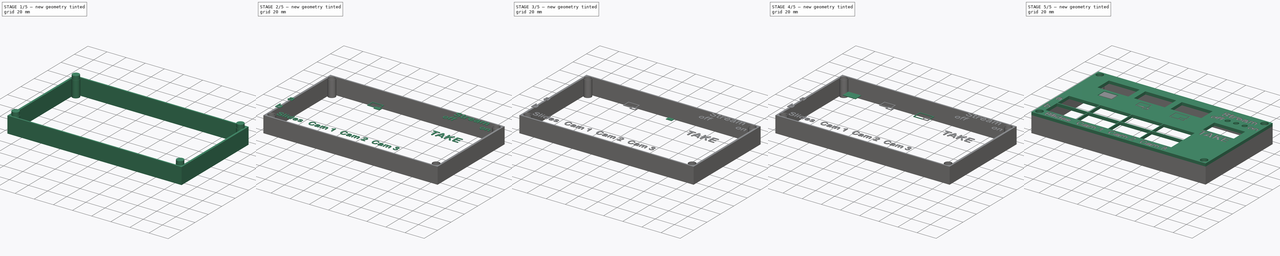
[diagram: build sequence overview — one tinted view per stage of 5, left to right]
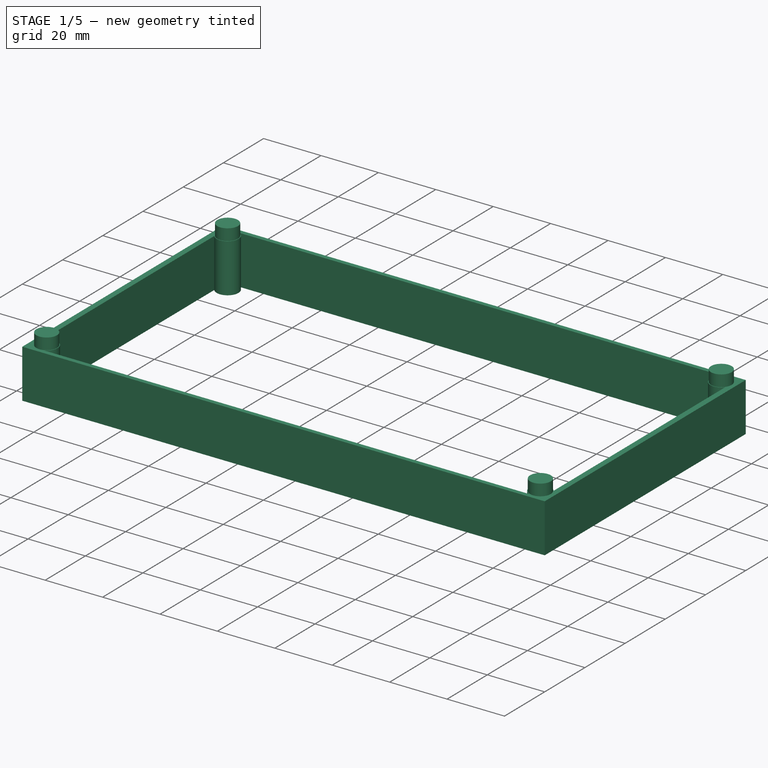
[diagram: stage 1 of 5 — iso view after this stage's code; geometry added in this stage tinted green]
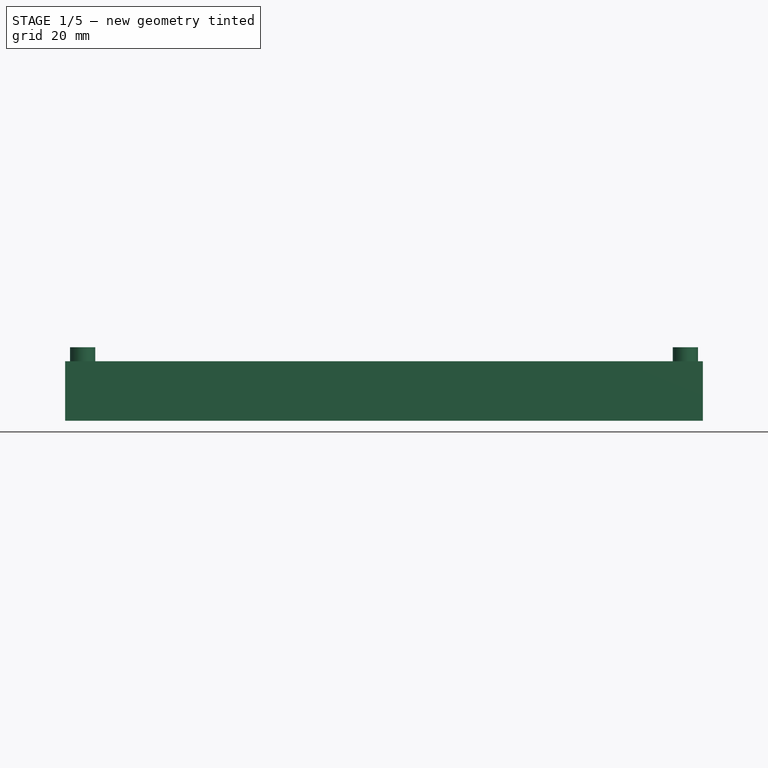
[diagram: stage 1 of 5 — front view after this stage's code; geometry added in this stage tinted green]
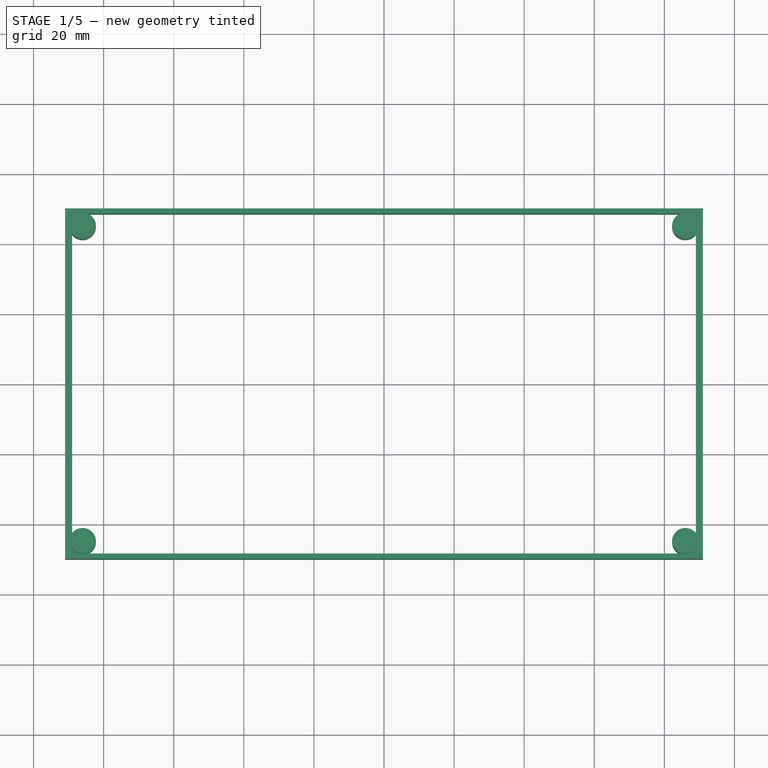
[diagram: stage 1 of 5 — top view after this stage's code; geometry added in this stage tinted green]
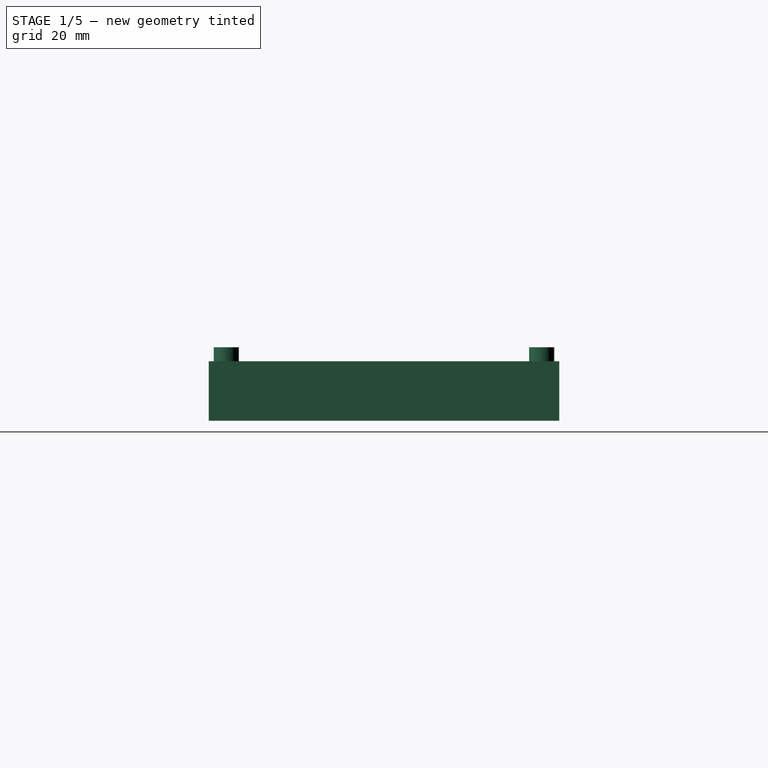
[diagram: stage 1 of 5 — right view after this stage's code; geometry added in this stage tinted green]
FCSTD DOCUMENT  (FreeCAD 0.16R6712 (Git))
Label: Vmix-C halbgeschnitten oben
License: CreativeCommons Attribution
LicenseURL: http://creativecommons.org/licenses/by/4.0/
objects: Part::Part2DObjectPython×10, Part::Box×10, Part::Cut×7, Part::MultiFuse×6, Part::Cylinder×4, Part::Extrusion×3, Sketcher::SketchObject×2
note: 42 computed .brp shape members not serialized (recipe doc carries the construction recipe); baked Part::Feature solids carry a one-line shape summary decoded from their .brp

FEATURE [Part::Extrusion] Extrude001  label="Extrude außen Deckel"
  Base = -> Sketch
  Dir = (0,0,-17)
  Solid = true
FEATURE [Part::Cylinder] Cylinder  label="Zylinder"
  Angle = 360
  Height = 18
  Placement = pos=(-86,-45,-14) rot=(0,0,1;0rad)
  Radius = 3.6
FEATURE [Part::Cylinder] Cylinder001  label="Zylinder001"
  Angle = 360
  Height = 18
  Placement = pos=(-86,45,-14) rot=(0,0,1;0rad)
  Radius = 3.6
FEATURE [Part::Cylinder] Cylinder002  label="Zylinder002"
  Angle = 360
  Height = 18
  Placement = pos=(86,45,-14) rot=(0,0,1;0rad)
  Radius = 3.6
FEATURE [Part::Cylinder] Cylinder003  label="Zylinder003"
  Angle = 360
  Height = 18
  Placement = pos=(86,-45,-14) rot=(0,0,1;0rad)
  Radius = 3.6
FEATURE [Part::MultiFuse] Fusion
  Shapes = -> [Cylinder,Cylinder003,Cylinder002,Cylinder001]
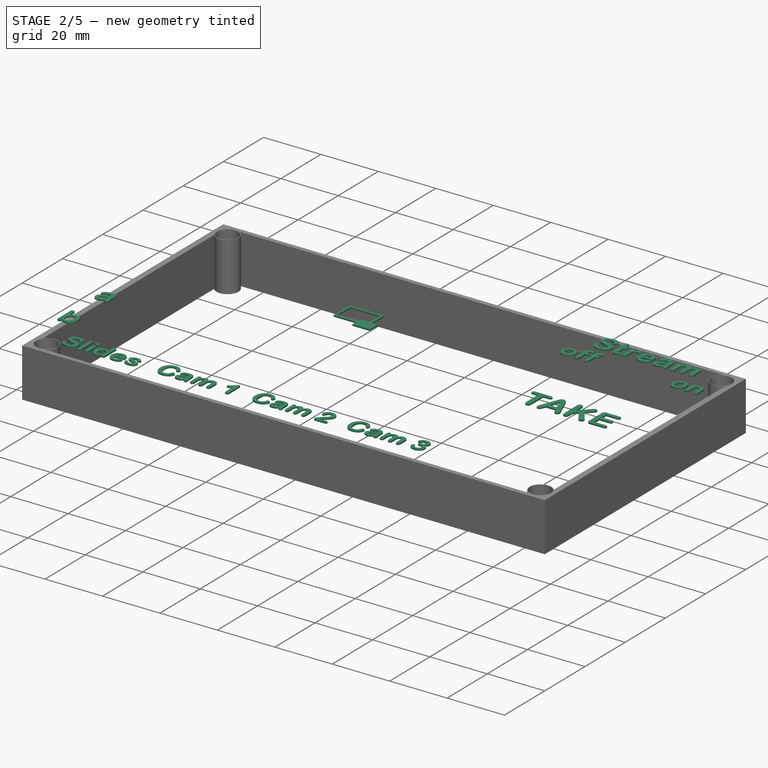
[diagram: stage 2 of 5 — iso view after this stage's code; geometry added in this stage tinted green]
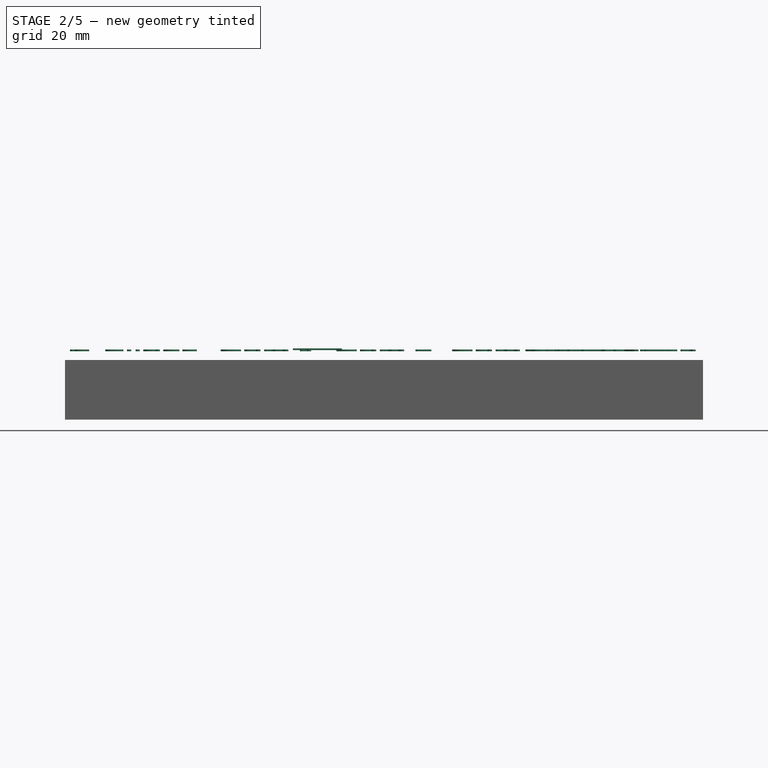
[diagram: stage 2 of 5 — front view after this stage's code; geometry added in this stage tinted green]
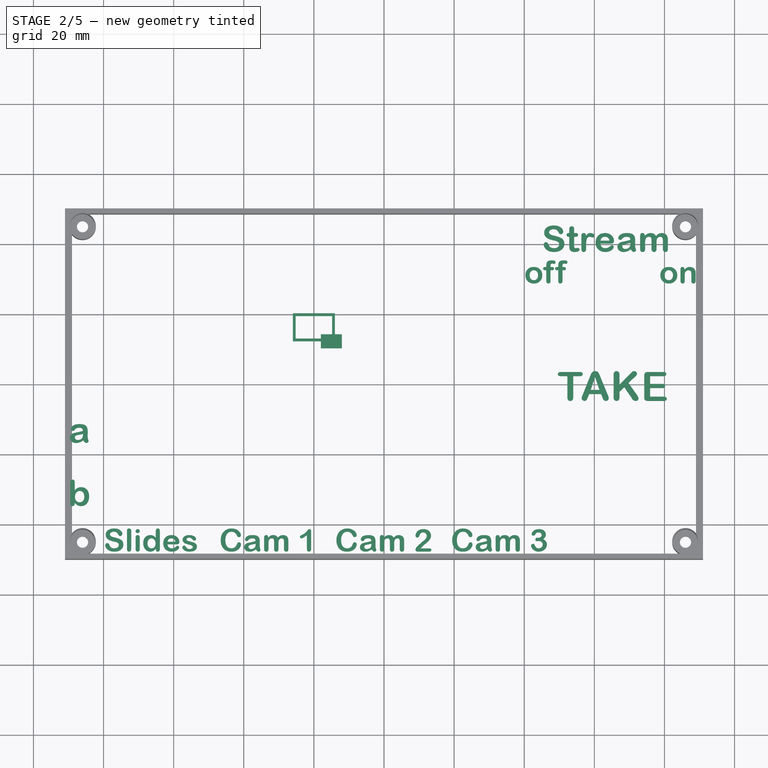
[diagram: stage 2 of 5 — top view after this stage's code; geometry added in this stage tinted green]
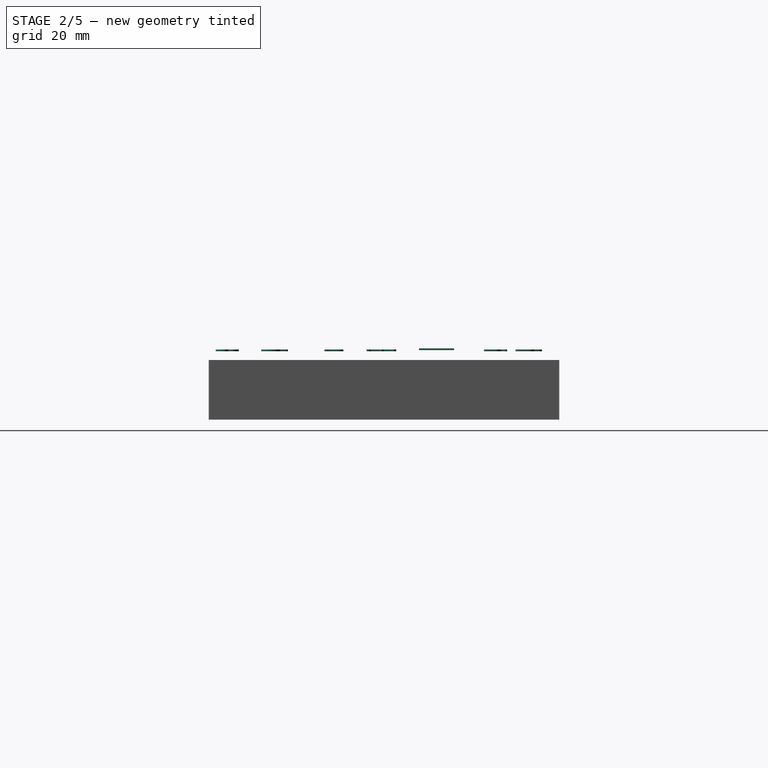
[diagram: stage 2 of 5 — right view after this stage's code; geometry added in this stage tinted green]
FEATURE [Part::Box] Box002  label="Würfel002"
  Height = 0.5
  Length = 12
  Placement = pos=(-26,12,2.8) rot=(0,0,1;0rad)
  Width = 8
FEATURE [Part::Box] Box006  label="Würfel006"
  Height = 0.5
  Length = 6
  Placement = pos=(-18,10,2.8) rot=(0,0,1;0rad)
  Width = 4
FEATURE [Part::Box] Box009  label="Würfel009"
  Height = 0.5
  Length = 10.4
  Placement = pos=(-25.2,12.8,2.8) rot=(0,0,1;0rad)
  Width = 6.4
FEATURE [Part::Cut] Cut004
  Base = -> Box002
  Tool = -> Box009
FEATURE [Part::Part2DObjectPython] ShapeString008  label="Stream"  # Draft 2D object (typed FeaturePython)
  FontFile = /Library/Fonts/Arial Rounded Bold.ttf
  Placement = pos=(45,37.5,3) rot=(0,0,1;0rad)
  Size = 8
  String = Stream
  Tracking = 0
FEATURE [Part::Part2DObjectPython] ShapeString009  label="on"  # Draft 2D object (typed FeaturePython)
  FontFile = /Library/Fonts/Arial Rounded Bold.ttf
  Placement = pos=(78.5,28.5,3) rot=(0,0,1;0rad)
  Size = 7
  String = on
  Tracking = 0
FEATURE [Part::Part2DObjectPython] ShapeString010  label="off"  # Draft 2D object (typed FeaturePython)
  FontFile = /Library/Fonts/Arial Rounded Bold.ttf
  Placement = pos=(40,28.5,3) rot=(0,0,1;0rad)
  Size = 7
  String = off
  Tracking = 0
FEATURE [Part::MultiFuse] Fusion005  label="FusionText"
  Shapes = -> [ShapeString010,ShapeString009,ShapeString008,ShapeString,ShapeString001,ShapeString002,ShapeString003,ShapeString004,ShapeString005,ShapeString006]
FEATURE [Part::Extrusion] Extrude002  label="ExtrudeText"
  Base = -> Fusion005
  Dir = (0,0,-0.5)
  Solid = true
FEATURE [Part::Cut] Cut006  label="Cut aussen"
  Base = -> Extrude001
  Tool = -> Fusion
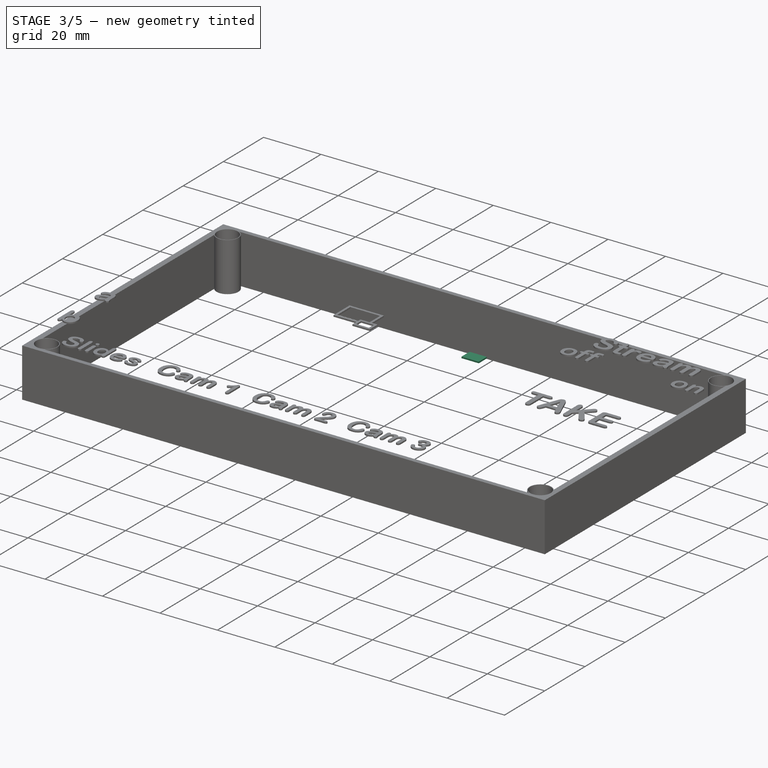
[diagram: stage 3 of 5 — iso view after this stage's code; geometry added in this stage tinted green]
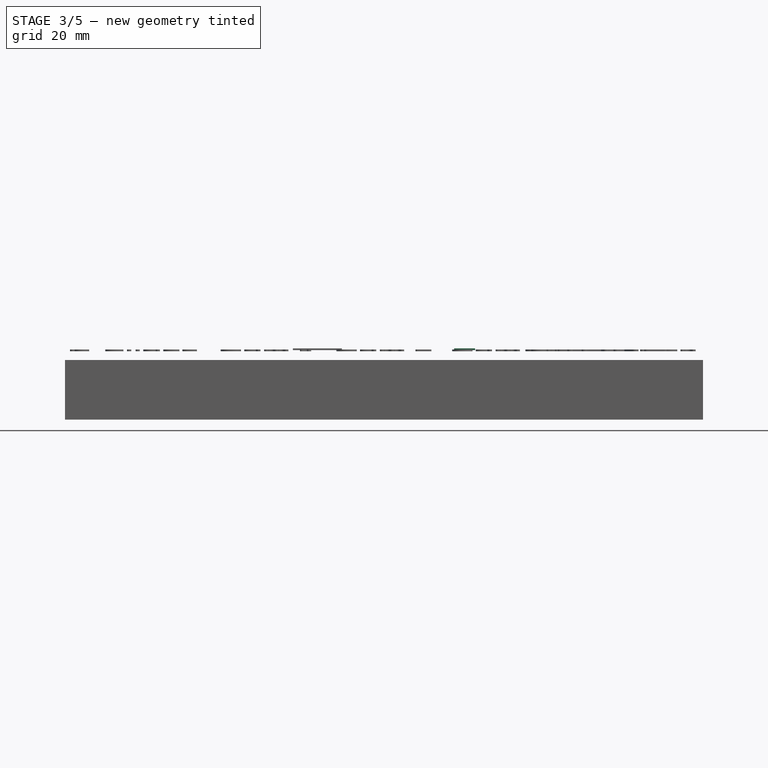
[diagram: stage 3 of 5 — front view after this stage's code; geometry added in this stage tinted green]
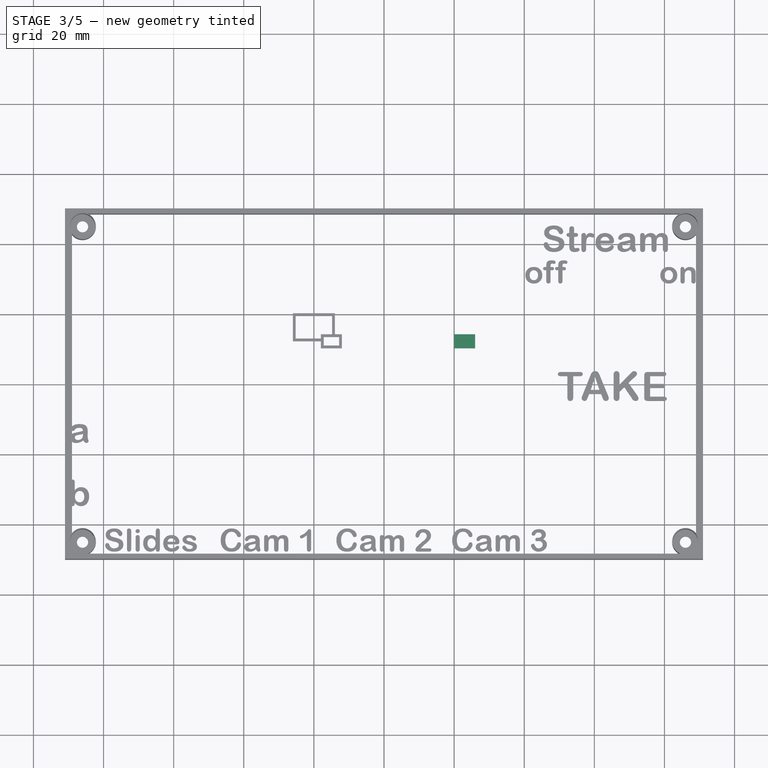
[diagram: stage 3 of 5 — top view after this stage's code; geometry added in this stage tinted green]
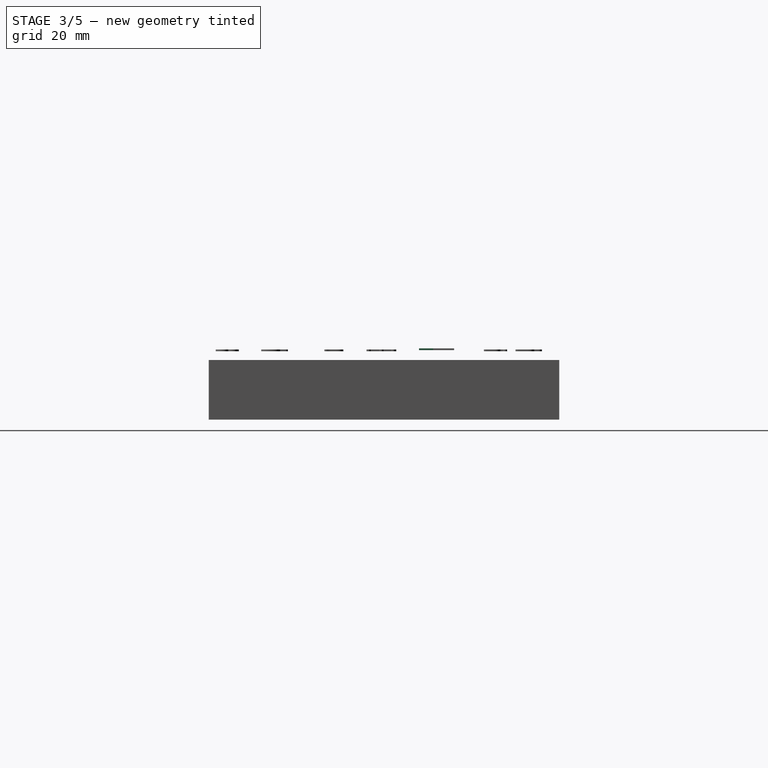
[diagram: stage 3 of 5 — right view after this stage's code; geometry added in this stage tinted green]
FEATURE [Part::Box] Box005  label="Würfel005"
  Height = 0.5
  Length = 6
  Placement = pos=(20,10,2.8) rot=(0,0,1;0rad)
  Width = 4
FEATURE [Part::Box] Box007  label="Würfel007"
  Height = 0.5
  Length = 4.4
  Placement = pos=(20.8,10.8,2.8) rot=(0,0,1;0rad)
  Width = 2.4
FEATURE [Part::Box] Box008  label="Würfel008"
  Height = 0.5
  Length = 4.4
  Placement = pos=(-17.2,10.8,2.8) rot=(0,0,1;0rad)
  Width = 2.4
FEATURE [Part::MultiFuse] Fusion003
  Shapes = -> [Cut004,Box006]
FEATURE [Part::Cut] Cut005  label="Cut superscource"
  Base = -> Fusion003
  Tool = -> Box008
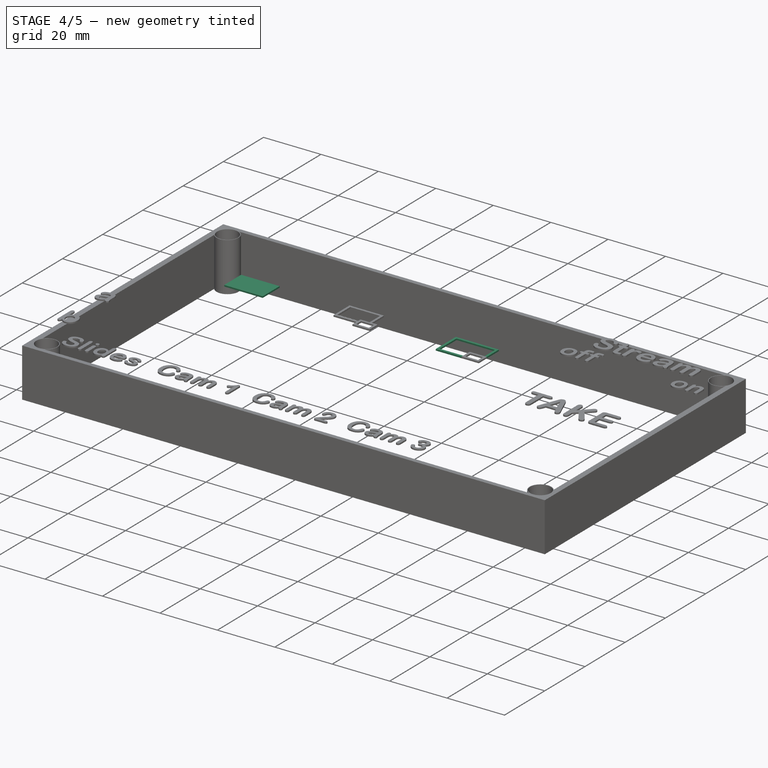
[diagram: stage 4 of 5 — iso view after this stage's code; geometry added in this stage tinted green]
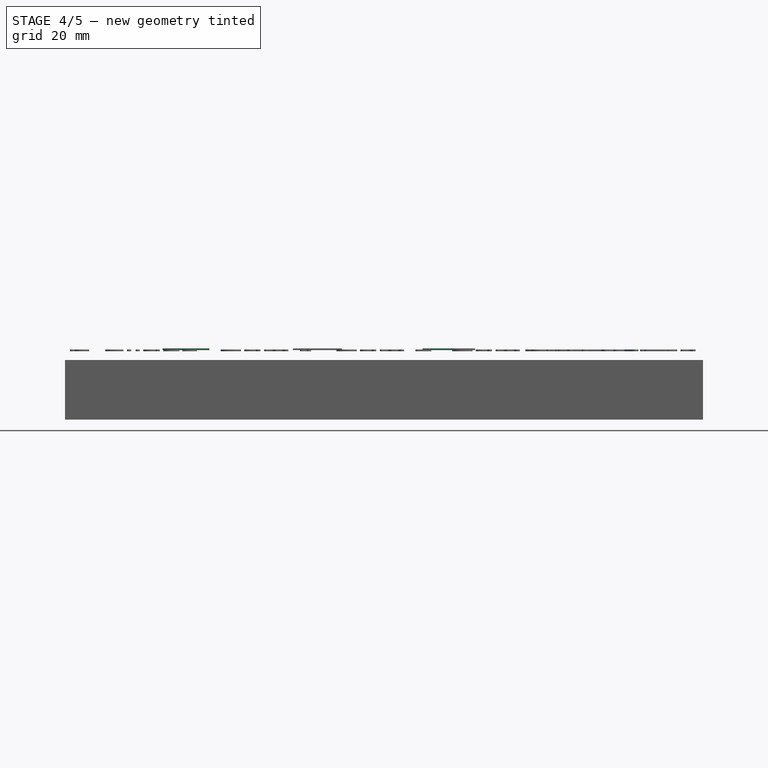
[diagram: stage 4 of 5 — front view after this stage's code; geometry added in this stage tinted green]
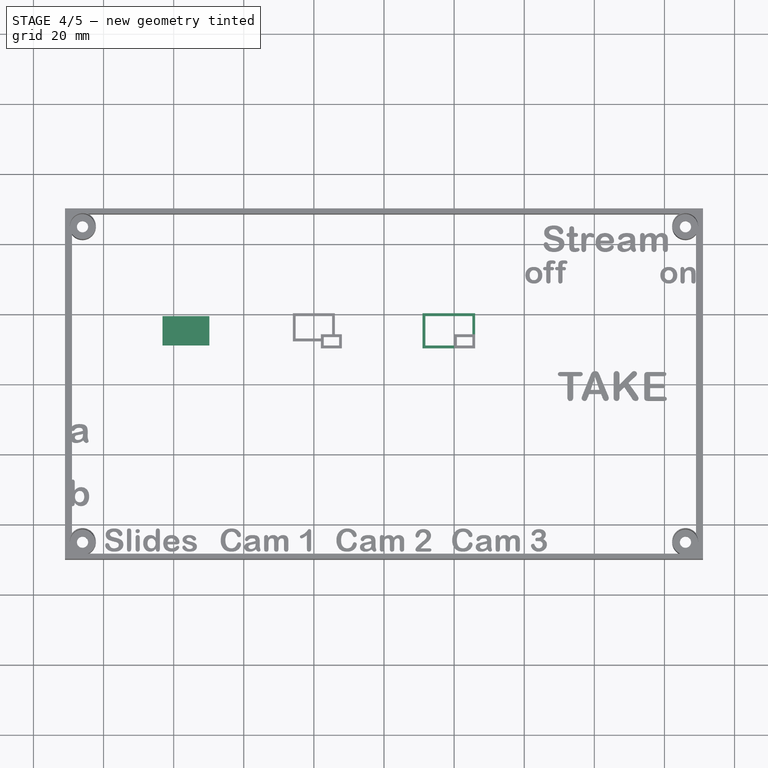
[diagram: stage 4 of 5 — top view after this stage's code; geometry added in this stage tinted green]
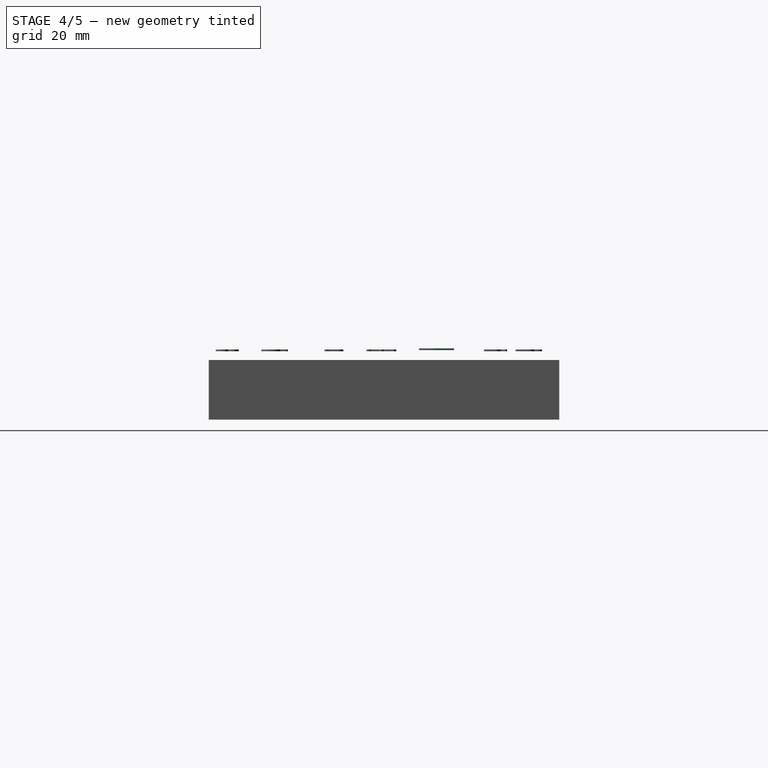
[diagram: stage 4 of 5 — right view after this stage's code; geometry added in this stage tinted green]
FEATURE [Part::Part2DObjectPython] ShapeString  label="a"  # Draft 2D object (typed FeaturePython)
  FontFile = /Library/Fonts/Arial Rounded Bold.ttf
  Placement = pos=(-90,-17,3) rot=(0,0,1;0rad)
  Size = 8
  String = a
  Tracking = 0
FEATURE [Part::Part2DObjectPython] ShapeString001  label="b"  # Draft 2D object (typed FeaturePython)
  FontFile = /Library/Fonts/Arial Rounded Bold.ttf
  Placement = pos=(-90.2,-35,3) rot=(0,0,1;0rad)
  Size = 8
  String = b
  Tracking = 0
FEATURE [Part::Part2DObjectPython] ShapeString002  label="Slides"  # Draft 2D object (typed FeaturePython)
  FontFile = /Library/Fonts/Arial Rounded Bold.ttf
  Placement = pos=(-80,-48,3) rot=(0,0,1;0rad)
  Size = 7
  String = Slides
  Tracking = 0
FEATURE [Part::Part2DObjectPython] ShapeString003  label="Cam 1"  # Draft 2D object (typed FeaturePython)
  FontFile = /Library/Fonts/Arial Rounded Bold.ttf
  Placement = pos=(-47.04,-48,3) rot=(0,0,1;0rad)
  Size = 7
  String = Cam 1
  Tracking = 0
FEATURE [Part::Part2DObjectPython] ShapeString004  label="Cam 2"  # Draft 2D object (typed FeaturePython)
  FontFile = /Library/Fonts/Arial Rounded Bold.ttf
  Placement = pos=(-14.02,-48,3) rot=(0,0,1;0rad)
  Size = 7
  String = Cam 2
  Tracking = 0
FEATURE [Part::Part2DObjectPython] ShapeString005  label="Cam 3"  # Draft 2D object (typed FeaturePython)
  FontFile = /Library/Fonts/Arial Rounded Bold.ttf
  Placement = pos=(19,-48,3) rot=(0,0,1;0rad)
  Size = 7
  String = Cam 3
  Tracking = 0
FEATURE [Part::Part2DObjectPython] ShapeString006  label="TAKE"  # Draft 2D object (typed FeaturePython)
  FontFile = /Library/Fonts/Arial Rounded Bold.ttf
  Placement = pos=(49.5,-5,3) rot=(0,0,1;0rad)
  Size = 9
  String = TAKE
  Tracking = 0
FEATURE [Part::Box] Box  label="Würfel"
  Height = 0.5
  Length = 15
  Placement = pos=(11,10,2.8) rot=(0,0,1;0rad)
  Width = 10
FEATURE [Part::Box] Box003  label="Würfel003"
  Height = 0.5
  Length = 13.4
  Placement = pos=(-63.2,10.8,2.8) rot=(0,0,1;0rad)
  Width = 8.4
FEATURE [Part::Box] Box004  label="Würfel004"
  Height = 0.5
  Length = 13.4
  Placement = pos=(11.8,10.8,2.8) rot=(0,0,1;0rad)
  Width = 8.4
FEATURE [Part::Cut] Cut002
  Base = -> Box
  Tool = -> Box004
FEATURE [Part::MultiFuse] Fusion002
  Shapes = -> [Box005,Cut002]
FEATURE [Part::Cut] Cut003  label="Cut picture-in-picture"
  Base = -> Fusion002
  Tool = -> Box007
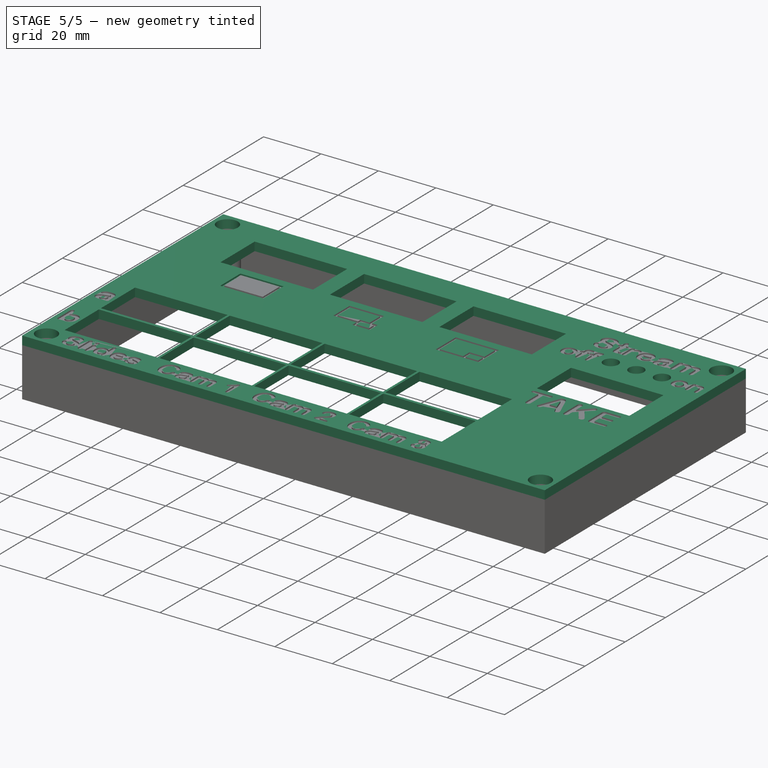
[diagram: stage 5 of 5 — iso view after this stage's code; geometry added in this stage tinted green]
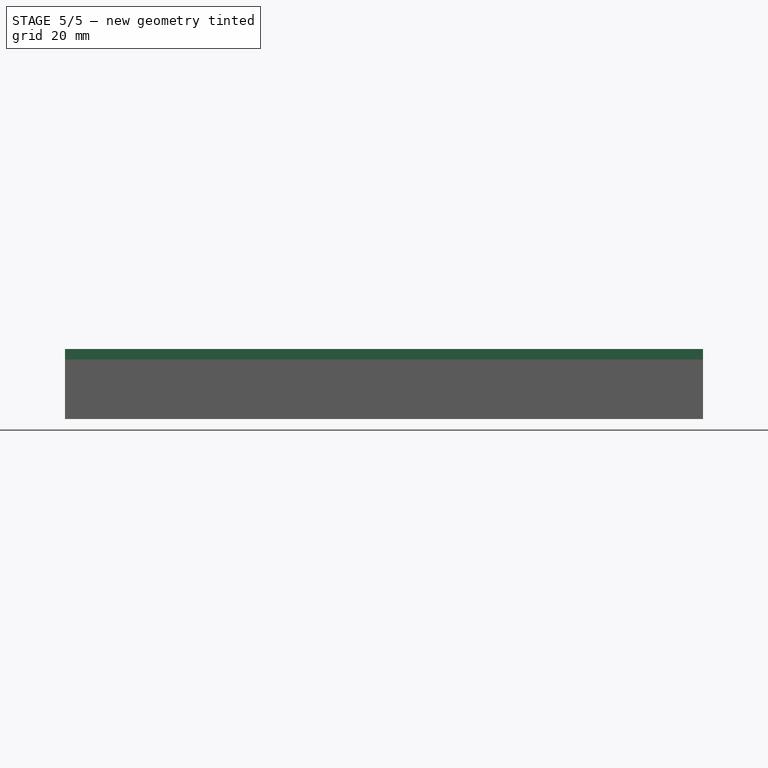
[diagram: stage 5 of 5 — front view after this stage's code; geometry added in this stage tinted green]
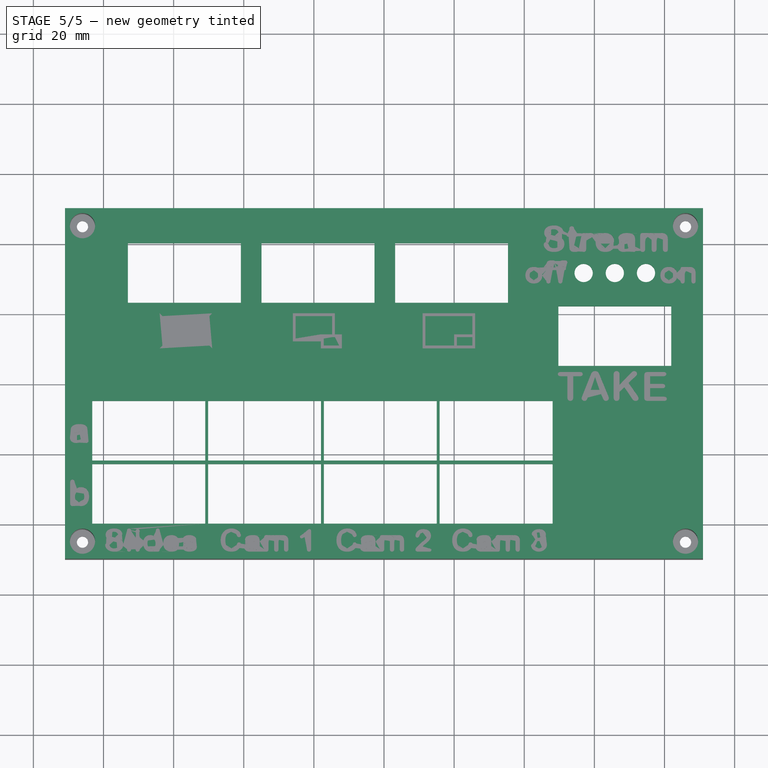
[diagram: stage 5 of 5 — top view after this stage's code; geometry added in this stage tinted green]
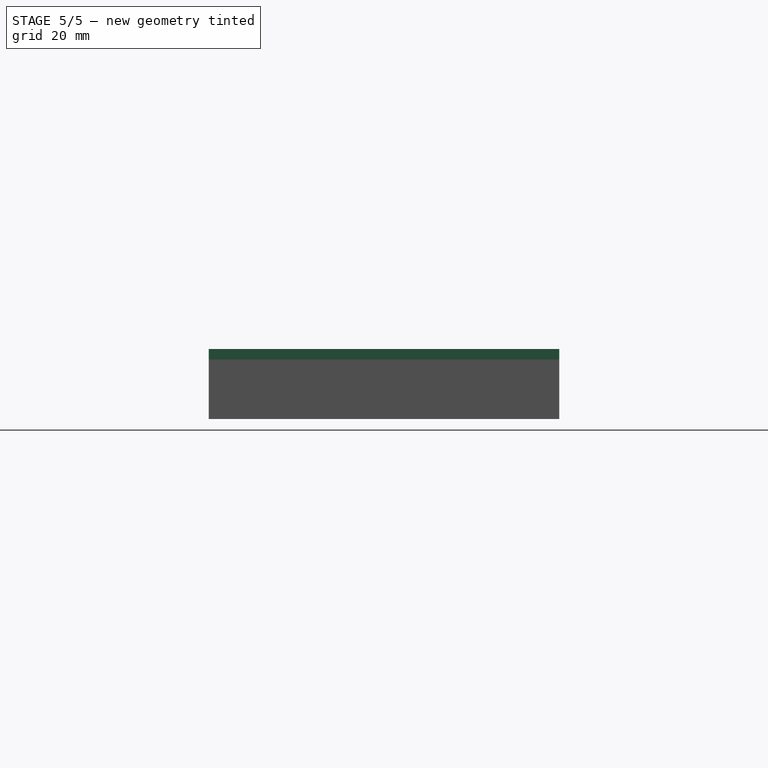
[diagram: stage 5 of 5 — right view after this stage's code; geometry added in this stage tinted green]
FEATURE [Sketcher::SketchObject] Sketch  label="Sketch außen"
  sketch-geometry (16):
    g0: LineSegment StartX=-84.5201 StartY=48.5 StartZ=0 EndX=84.5201 EndY=48.5 EndZ=0
    g1: LineSegment StartX=89 StartY=42.6676 StartZ=0 EndX=89 EndY=-42.6676 EndZ=0
    g2: LineSegment StartX=84.5201 StartY=-48.5 StartZ=0 EndX=-84.5201 EndY=-48.5 EndZ=0
    g3: LineSegment StartX=-89 StartY=-42.6676 StartZ=0 EndX=-89 EndY=42.6676 EndZ=0
    g4: LineSegment StartX=-91 StartY=50 StartZ=0 EndX=91 EndY=50 EndZ=0
    g5: LineSegment StartX=91 StartY=50 StartZ=0 EndX=91 EndY=-50 EndZ=0
    g6: LineSegment StartX=91 StartY=-50 StartZ=0 EndX=-91 EndY=-50 EndZ=0
    g7: LineSegment StartX=-91 StartY=-50 StartZ=0 EndX=-91 EndY=50 EndZ=0
    g8: Circle CenterX=-86 CenterY=45 CenterZ=0 NormalX=0 NormalY=0 NormalZ=1 Radius=1.6
    g9: Circle CenterX=86 CenterY=45 CenterZ=0 NormalX=0 NormalY=0 NormalZ=1 Radius=1.6
    g10: Circle CenterX=86 CenterY=-45 CenterZ=0 NormalX=0 NormalY=0 NormalZ=1 Radius=1.6
    g11: Circle CenterX=-86 CenterY=-45 CenterZ=0 NormalX=0 NormalY=0 NormalZ=1 Radius=1.6
    g12: ArcOfCircle CenterX=-86 CenterY=45 CenterZ=0 NormalX=0 NormalY=0 NormalZ=1 Radius=3.8 StartAngle=3.80244 EndAngle=7.45396
    g13: ArcOfCircle CenterX=-86 CenterY=-45 CenterZ=0 NormalX=0 NormalY=0 NormalZ=1 Radius=3.8 StartAngle=5.11241 EndAngle=8.76393
    g14: ArcOfCircle CenterX=86 CenterY=45 CenterZ=0 NormalX=0 NormalY=0 NormalZ=1 Radius=3.8 StartAngle=1.97082 EndAngle=5.62234
    g15: ArcOfCircle CenterX=86 CenterY=-45 CenterZ=0 NormalX=0 NormalY=0 NormalZ=1 Radius=3.8 StartAngle=0.660845 EndAngle=4.31237
  constraints (45):
    c: Horizontal(g0)
    c: Horizontal(g2)
    c: Vertical(g1)
    c: Vertical(g3)
    c: Coincident(g4,g5)
    c: Coincident(g5,g6)
    c: Coincident(g6,g7)
    c: Coincident(g7,g4)
    c: Horizontal(g4)
    c: Horizontal(g6)
    c: Vertical(g5)
    c: Vertical(g7)
    c: DistanceX(g4,g4) = 182
    c: DistanceY(g7,g7) = 100
    c: Symmetric(g4,g6,g-1)
    c: Symmetric(g4,g4,g-2)
    c: Coincident(g12,g8)
    c: Coincident(g11,g13)
    c: Coincident(g10,g15)
    c: Coincident(g9,g14)
    c: Radius(g8) = 1.6
    c: Radius(g10) = 1.6
    c: Radius(g9) = 1.6
    c: Radius(g11) = 1.6
    c: Radius(g13) = 3.8
    c: Radius(g15) = 3.8
    c: Radius(g14) = 3.8
    c: Radius(g12) = 3.8
    c: Symmetric(g10,g9,g-1)
    c: Symmetric(g11,g8,g-1)
    c: Symmetric(g11,g10,g-2)
    c: DistanceY(g6,g11) = 5
    c: DistanceX(g6,g11) = 5
    c: Coincident(g13,g2)
    c: Coincident(g13,g3)
    c: Coincident(g12,g3)
    c: Coincident(g12,g0)
    c: Coincident(g15,g1)
    c: Coincident(g15,g2)
    c: Coincident(g14,g0)
    c: Coincident(g14,g1)
    c: DistanceX(g6,g3) = 2
    c: DistanceY(g6,g2) = 1.5
    c: DistanceX(g1,g4) = 2
    c: DistanceY(g0,g4) = 1.5
FEATURE [Sketcher::SketchObject] Sketch001  label="Sketch oben"
  sketch-geometry (62):
    g0: LineSegment StartX=-91 StartY=50 StartZ=0 EndX=91 EndY=50 EndZ=0
    g1: LineSegment StartX=91 StartY=50 StartZ=0 EndX=91 EndY=-50 EndZ=0
    g2: LineSegment StartX=91 StartY=-50 StartZ=0 EndX=-91 EndY=-50 EndZ=0
    g3: LineSegment StartX=-91 StartY=-50 StartZ=0 EndX=-91 EndY=50 EndZ=0
    g4: LineSegment StartX=-83.2 StartY=-23 StartZ=0 EndX=-50.98 EndY=-23 EndZ=0
    g5: LineSegment StartX=-50.98 StartY=-23 StartZ=0 EndX=-50.98 EndY=-40 EndZ=0
    g6: LineSegment StartX=-50.98 StartY=-40 StartZ=0 EndX=-83.2 EndY=-40 EndZ=0
    g7: LineSegment StartX=-83.2 StartY=-40 StartZ=0 EndX=-83.2 EndY=-23 EndZ=0
    g8: LineSegment StartX=-50.18 StartY=-23 StartZ=0 EndX=-17.96 EndY=-23 EndZ=0
    g9: LineSegment StartX=-17.96 StartY=-23 StartZ=0 EndX=-17.96 EndY=-40 EndZ=0
    g10: LineSegment StartX=-17.96 StartY=-40 StartZ=0 EndX=-50.18 EndY=-40 EndZ=0
    g11: LineSegment StartX=-50.18 StartY=-40 StartZ=0 EndX=-50.18 EndY=-23 EndZ=0
    g12: LineSegment StartX=-17.16 StartY=-23 StartZ=0 EndX=15.06 EndY=-23 EndZ=0
    g13: LineSegment StartX=15.06 StartY=-23 StartZ=0 EndX=15.06 EndY=-40 EndZ=0
    g14: LineSegment StartX=15.06 StartY=-40 StartZ=0 EndX=-17.16 EndY=-40 EndZ=0
    g15: LineSegment StartX=-17.16 StartY=-40 StartZ=0 EndX=-17.16 EndY=-23 EndZ=0
    g16: LineSegment StartX=15.86 StartY=-23 StartZ=0 EndX=48.08 EndY=-23 EndZ=0
    g17: LineSegment StartX=48.08 StartY=-23 StartZ=0 EndX=48.08 EndY=-40 EndZ=0
    g18: LineSegment StartX=48.08 StartY=-40 StartZ=0 EndX=15.86 EndY=-40 EndZ=0
    g19: LineSegment StartX=15.86 StartY=-40 StartZ=0 EndX=15.86 EndY=-23 EndZ=0
    g20: LineSegment StartX=48.08 StartY=-22 StartZ=0 EndX=15.86 EndY=-22 EndZ=0
    g21: LineSegment StartX=15.86 StartY=-22 StartZ=0 EndX=15.86 EndY=-5 EndZ=0
    g22: LineSegment StartX=15.86 StartY=-5 StartZ=0 EndX=48.08 EndY=-5 EndZ=0
    g23: LineSegment StartX=48.08 StartY=-5 StartZ=0 EndX=48.08 EndY=-22 EndZ=0
    g24: LineSegment StartX=15.06 StartY=-5 StartZ=0 EndX=-17.16 EndY=-5 EndZ=0
    g25: LineSegment StartX=-17.16 StartY=-5 StartZ=0 EndX=-17.16 EndY=-22 EndZ=0
    g26: LineSegment StartX=-17.16 StartY=-22 StartZ=0 EndX=15.06 EndY=-22 EndZ=0
    g27: LineSegment StartX=15.06 StartY=-22 StartZ=0 EndX=15.06 EndY=-5 EndZ=0
    g28: LineSegment StartX=-17.96 StartY=-5 StartZ=0 EndX=-50.18 EndY=-5 EndZ=0
    g29: LineSegment StartX=-50.18 StartY=-5 StartZ=0 EndX=-50.18 EndY=-22 EndZ=0
    g30: LineSegment StartX=-50.18 StartY=-22 StartZ=0 EndX=-17.96 EndY=-22 EndZ=0
    g31: LineSegment StartX=-17.96 StartY=-22 StartZ=0 EndX=-17.96 EndY=-5 EndZ=0
    g32: LineSegment StartX=-50.98 StartY=-22 StartZ=0 EndX=-83.2 EndY=-22 EndZ=0
    g33: LineSegment StartX=-83.2 StartY=-22 StartZ=0 EndX=-83.2 EndY=-5 EndZ=0
    g34: LineSegment StartX=-83.2 StartY=-5 StartZ=0 EndX=-50.98 EndY=-5 EndZ=0
    g35: LineSegment StartX=-50.98 StartY=-5 StartZ=0 EndX=-50.98 EndY=-22 EndZ=0
    g36: LineSegment StartX=-73.04 StartY=40 StartZ=0 EndX=-40.82 EndY=40 EndZ=0
    g37: LineSegment StartX=-40.82 StartY=40 StartZ=0 EndX=-40.82 EndY=23 EndZ=0
    g38: LineSegment StartX=-40.82 StartY=23 StartZ=0 EndX=-73.04 EndY=23 EndZ=0
    g39: LineSegment StartX=-73.04 StartY=23 StartZ=0 EndX=-73.04 EndY=40 EndZ=0
    g40: LineSegment StartX=-34.94 StartY=40 StartZ=0 EndX=-2.72 EndY=40 EndZ=0
    g41: LineSegment StartX=-2.72 StartY=40 StartZ=0 EndX=-2.72 EndY=23 EndZ=0
    g42: LineSegment StartX=-2.72 StartY=23 StartZ=0 EndX=-34.94 EndY=23 EndZ=0
    g43: LineSegment StartX=-34.94 StartY=23 StartZ=0 EndX=-34.94 EndY=40 EndZ=0
    g44: LineSegment StartX=3.16 StartY=40 StartZ=0 EndX=35.38 EndY=40 EndZ=0
    g45: LineSegment StartX=35.38 StartY=40 StartZ=0 EndX=35.38 EndY=23 EndZ=0
    g46: LineSegment StartX=35.38 StartY=23 StartZ=0 EndX=3.16 EndY=23 EndZ=0
    g47: LineSegment StartX=3.16 StartY=23 StartZ=0 EndX=3.16 EndY=40 EndZ=0
    g48: LineSegment StartX=49.72 StartY=22 StartZ=0 EndX=81.94 EndY=22 EndZ=0
    g49: LineSegment StartX=81.94 StartY=22 StartZ=0 EndX=81.94 EndY=5 EndZ=0
    g50: LineSegment StartX=81.94 StartY=5 StartZ=0 EndX=49.72 EndY=5 EndZ=0
    g51: LineSegment StartX=49.72 StartY=5 StartZ=0 EndX=49.72 EndY=22 EndZ=0
    g52: LineSegment [constr] StartX=-83.2 StartY=-40 StartZ=0 EndX=48.08 EndY=-40 EndZ=0
    g53: LineSegment [constr] StartX=-83.2 StartY=-22 StartZ=0 EndX=48.08 EndY=-22 EndZ=0
    g54: LineSegment [constr] StartX=-73.04 StartY=40 StartZ=0 EndX=35.38 EndY=40 EndZ=0
    g55: Circle CenterX=-86 CenterY=45 CenterZ=0 NormalX=0 NormalY=0 NormalZ=1 Radius=3.6
    g56: Circle CenterX=-86 CenterY=-45 CenterZ=0 NormalX=0 NormalY=0 NormalZ=1 Radius=3.6
    g57: Circle CenterX=86 CenterY=45 CenterZ=0 NormalX=0 NormalY=0 NormalZ=1 Radius=3.6
    g58: Circle CenterX=86 CenterY=-45 CenterZ=0 NormalX=0 NormalY=0 NormalZ=1 Radius=3.6
    g59: Circle CenterX=56.94 CenterY=31.5 CenterZ=0 NormalX=0 NormalY=0 NormalZ=1 Radius=2.6
    g60: Circle CenterX=65.83 CenterY=31.5 CenterZ=0 NormalX=0 NormalY=0 NormalZ=1 Radius=2.6
    g61: Circle CenterX=74.72 CenterY=31.5 CenterZ=0 NormalX=0 NormalY=0 NormalZ=1 Radius=2.6
  constraints (182):
    c: Coincident(g0,g1)
    c: Coincident(g1,g2)
    c: Coincident(g2,g3)
    c: Coincident(g3,g0)
    c: Horizontal(g0)
    c: Horizontal(g2)
    c: Vertical(g1)
    c: Vertical(g3)
    c: Coincident(g4,g5)
    c: Coincident(g5,g6)
    c: Coincident(g6,g7)
    c: Coincident(g7,g4)
    c: Horizontal(g4)
    c: Horizontal(g6)
    c: Vertical(g5)
    c: Vertical(g7)
    c: Coincident(g8,g9)
    c: Coincident(g9,g10)
    c: Coincident(g10,g11)
    c: Coincident(g11,g8)
    c: Horizontal(g8)
    c: Horizontal(g10)
    c: Vertical(g9)
    c: Vertical(g11)
    c: Coincident(g12,g13)
    c: Coincident(g13,g14)
    c: Coincident(g14,g15)
    c: Coincident(g15,g12)
    c: Horizontal(g12)
    c: Horizontal(g14)
    c: Vertical(g13)
    c: Vertical(g15)
    c: Coincident(g16,g17)
    c: Coincident(g17,g18)
    c: Coincident(g18,g19)
    c: Coincident(g19,g16)
    c: Horizontal(g16)
    c: Horizontal(g18)
    c: Vertical(g17)
    c: Vertical(g19)
    c: Coincident(g20,g21)
    c: Coincident(g21,g22)
    c: Coincident(g22,g23)
    c: Coincident(g23,g20)
    c: Horizontal(g20)
    c: Horizontal(g22)
    c: Vertical(g21)
    c: Vertical(g23)
    c: Coincident(g24,g25)
    c: Coincident(g25,g26)
    c: Coincident(g26,g27)
    c: Coincident(g27,g24)
    c: Horizontal(g24)
    c: Horizontal(g26)
    c: Vertical(g25)
    c: Vertical(g27)
    c: Coincident(g28,g29)
    c: Coincident(g29,g30)
    c: Coincident(g30,g31)
    c: Coincident(g31,g28)
    c: Horizontal(g28)
    c: Horizontal(g30)
    c: Vertical(g29)
    c: Vertical(g31)
    c: Coincident(g32,g33)
    c: Coincident(g33,g34)
    c: Coincident(g34,g35)
    c: Coincident(g35,g32)
    c: Horizontal(g32)
    c: Horizontal(g34)
    c: Vertical(g33)
    c: Vertical(g35)
    c: Coincident(g36,g37)
    c: Coincident(g37,g38)
    c: Coincident(g38,g39)
    c: Coincident(g39,g36)
    c: Horizontal(g36)
    c: Horizontal(g38)
    c: Vertical(g37)
    c: Vertical(g39)
    c: Coincident(g40,g41)
    c: Coincident(g41,g42)
    c: Coincident(g42,g43)
    c: Coincident(g43,g40)
    c: Horizontal(g40)
    c: Horizontal(g42)
    c: Vertical(g41)
    c: Vertical(g43)
    c: Coincident(g44,g45)
    c: Coincident(g45,g46)
    c: Coincident(g46,g47)
    c: Coincident(g47,g44)
    c: Horizontal(g44)
    c: Horizontal(g46)
    c: Vertical(g45)
    c: Vertical(g47)
    c: Coincident(g48,g49)
    c: Coincident(g49,g50)
    c: Coincident(g50,g51)
    c: Coincident(g51,g48)
    c: Horizontal(g48)
    c: Horizontal(g50)
    c: Vertical(g49)
    c: Vertical(g51)
    c: Equal(g36,g40)
    c: Equal(g40,g44)
    c: Equal(g44,g48)
    c: Equal(g48,g22)
    c: Equal(g22,g16)
    c: Equal(g16,g12)
    c: Equal(g12,g24)
    c: Equal(g24,g28)
    c: Equal(g28,g34)
    c: Equal(g34,g4)
    c: Equal(g4,g8)
    c: DistanceX(g48,g48) = 32.22
    c: Equal(g51,g45)
    c: Equal(g45,g43)
    c: Equal(g43,g37)
    c: Equal(g37,g23)
    c: Equal(g23,g17)
    c: Equal(g17,g13)
    c: Equal(g13,g27)
    c: Equal(g27,g31)
    c: Equal(g31,g15)
    c: Equal(g15,g5)
    c: Equal(g5,g35)
    c: DistanceY(g49,g49) = 17
    c: DistanceX(g0,g0) = 182
    c: Symmetric(g0,g1,g-1)
    c: Symmetric(g0,g0,g-2)
    c: Equal(g9,g13)
    c: DistanceY(g2,g6) = 10
    c: DistanceY(g36,g0) = 10
    c: DistanceY(g4,g32) = 1
    c: DistanceY(g48,g38) = 1
    c: Coincident(g52,g6)
    c: Horizontal(g52)
    c: PointOnObject(g10,g52)
    c: PointOnObject(g14,g52)
    c: PointOnObject(g18,g52)
    c: Coincident(g53,g32)
    c: Horizontal(g53)
    c: Coincident(g54,g36)
    c: Horizontal(g54)
    c: Coincident(g54,g44)
    c: Coincident(g53,g20)
    c: PointOnObject(g40,g54)
    c: Coincident(g52,g17)
    c: PointOnObject(g26,g53)
    c: PointOnObject(g30,g53)
    c: DistanceY(g1,g0) = 100
    c: DistanceX(g48,g0) = 41.28
    c: DistanceX(g2,g6) = 7.8
    c: DistanceX(g2,g33) = 7.8
    c: DistanceX(g34,g28) = 0.8
    c: DistanceX(g28,g24) = 0.8
    c: DistanceX(g24,g21) = 0.8
    c: DistanceX(g5,g10) = 0.8
    c: DistanceX(g9,g14) = 0.8
    c: DistanceX(g13,g18) = 0.8
    c: DistanceX(g0,g36) = 17.96
    c: DistanceX(g36,g40) = 38.1
    c: DistanceX(g40,g44) = 38.1
    c: Symmetric(g55,g57,g-2)
    c: Symmetric(g56,g58,g-2)
    c: Symmetric(g57,g58,g-1)
    c: Equal(g56,g55)
    c: Equal(g55,g57)
    c: Equal(g57,g58)
    c: Radius(g56) = 3.6
    c: DistanceX(g2,g56) = 5
    c: DistanceY(g2,g56) = 5
    c: DistanceY(g59,g0) = 18.5
    c: DistanceY(g61,g0) = 18.5
    c: DistanceY(g60,g0) = 18.5
    c: Equal(g61,g60)
    c: Equal(g60,g59)
    c: Radius(g59) = 2.6
    c: DistanceX(g60,g0) = 25.17
    c: DistanceX(g60,g61) = 8.89
    c: DistanceX(g59,g60) = 8.89
FEATURE [Part::Extrusion] Extrude  label="Extrude Oberfläche"
  Base = -> Sketch001
  Dir = (0,0,3)
  Solid = true
FEATURE [Part::Box] Box001  label="Würfel001"
  Height = 0.5
  Length = 15
  Placement = pos=(-64,10,2.8) rot=(0,0,1;0rad)
  Width = 10
FEATURE [Part::Cut] Cut001  label="Cut fullscreen"
  Base = -> Box001
  Tool = -> Box003
FEATURE [Part::MultiFuse] Fusion004  label="Fusion Szenen"
  Placement = pos=(0,0,-0.3) rot=(0,0,1;0rad)
  Shapes = -> [Cut001,Cut003,Cut005]
FEATURE [Part::MultiFuse] Fusion006  label="Fusion Gravur"
  Shapes = -> [Extrude002,Fusion004]
FEATURE [Part::Cut] Cut  label="Cut gravierte Oberfläche"
  Base = -> Extrude
  Tool = -> Fusion006
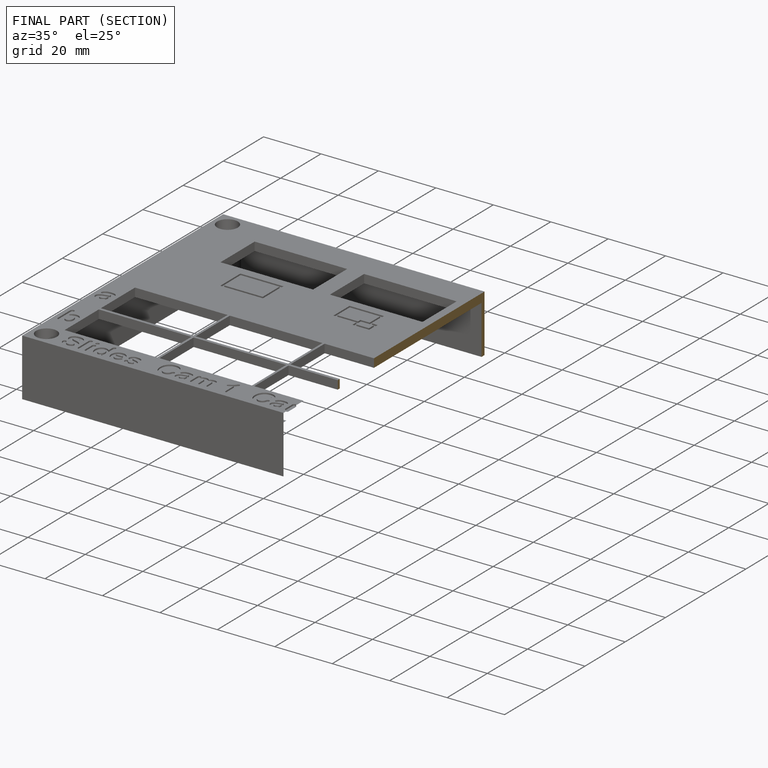
[diagram: finished part — half-section view (interior)]
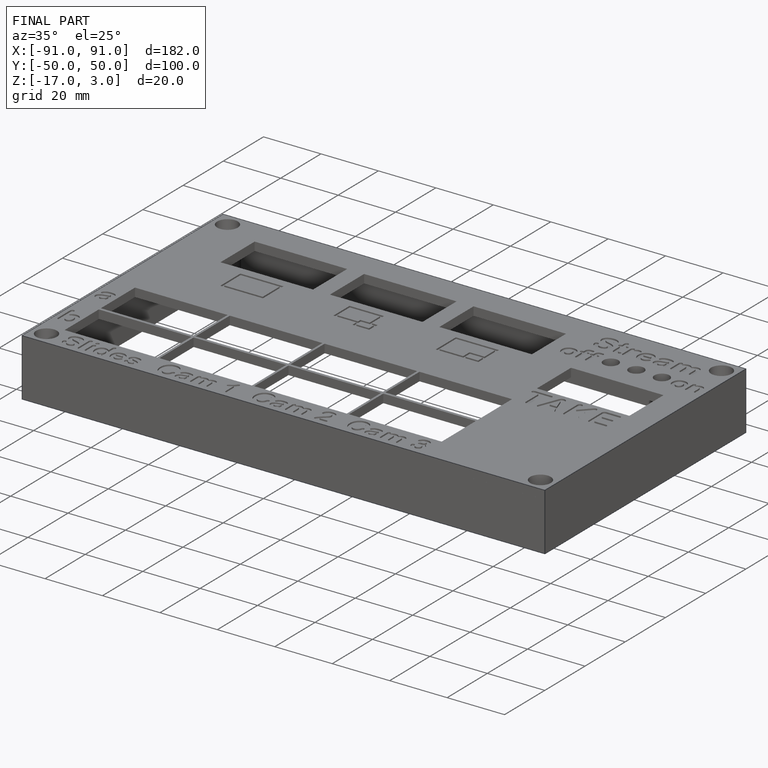
[diagram: finished part — iso view with bounding-box wireframe]
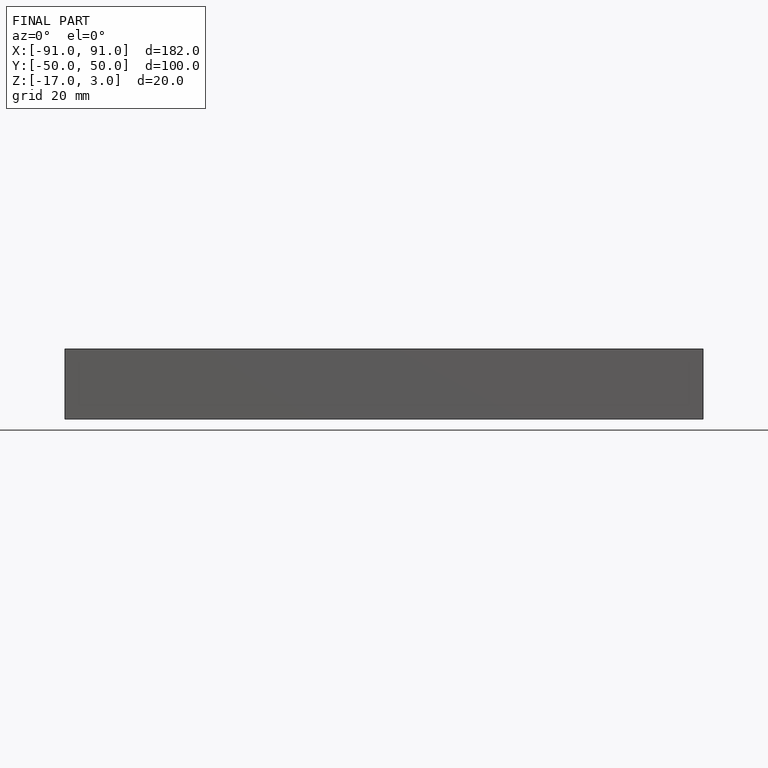
[diagram: finished part — front view with bounding-box wireframe]
